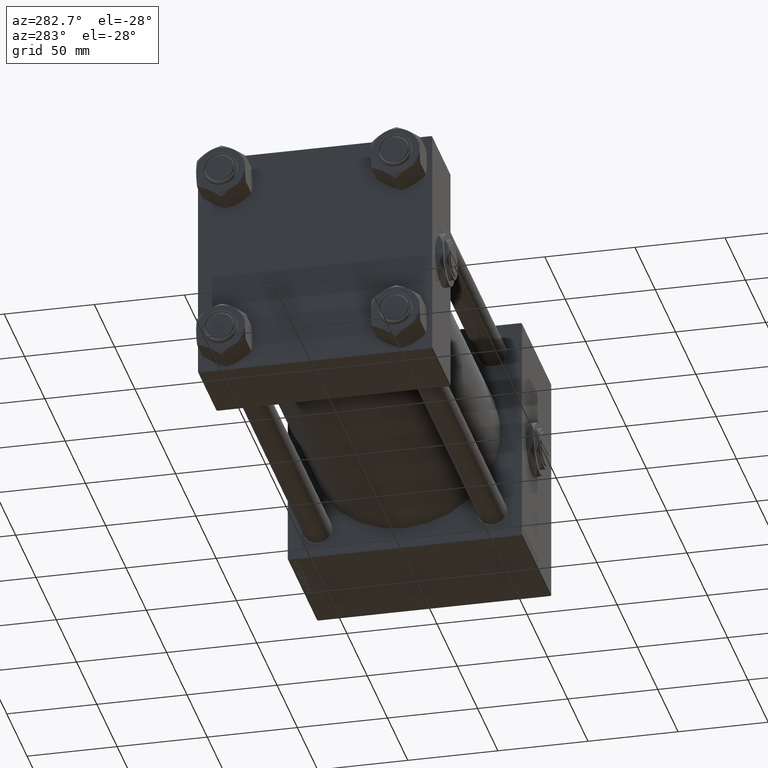
[diagram: clean part render]
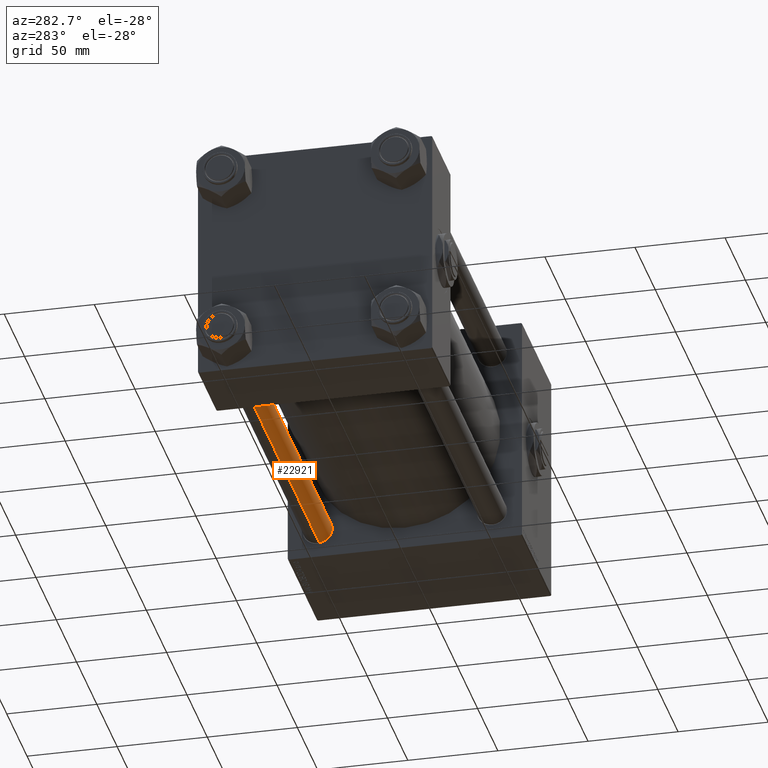
[diagram: same view with one face highlighted and labeled with its STEP entity id]
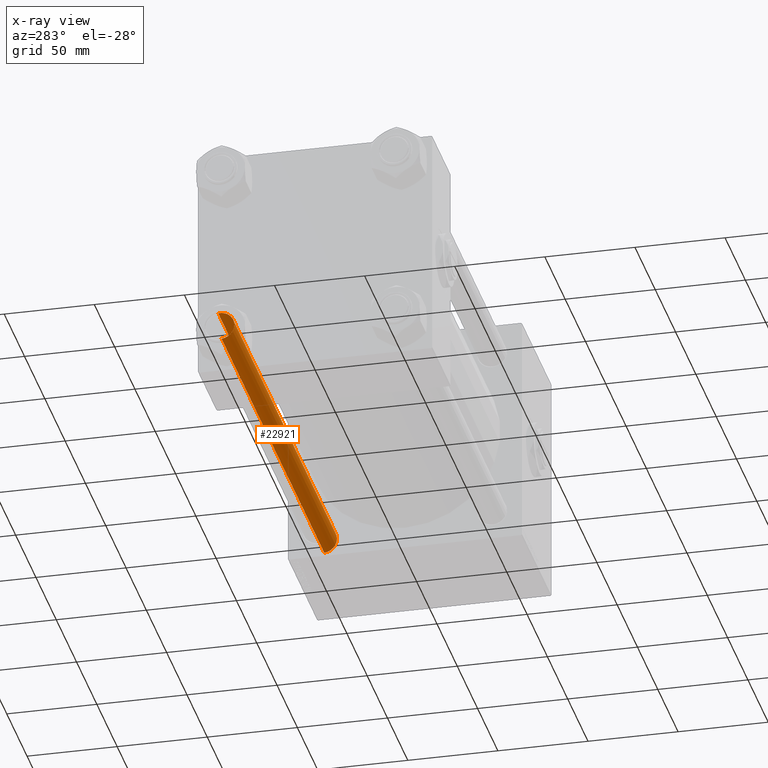
[diagram: x-ray of the same camera — body ghosted, the highlighted face saturated]
A machine part, auxiliary view. The second image highlights one B-rep face of the part: STEP entity #22921.
The next image is the same camera in x-ray: the body ghosted, the highlighted face saturated — about 0% of this face is hidden behind the body in this view.
In plain terms, the highlighted cylindrical surface (edge-blend (fillet) strip) has radius 8 mm, axis along (1, -0, 0).
Its self-contained STEP definition (entity closure, byte-faithful):
#152 = VERTEX_POINT ( 'NONE', #51806 ) ;
#2517 = FACE_OUTER_BOUND ( 'NONE', #32564, .T. ) ;
#3203 = CARTESIAN_POINT ( 'NONE',  ( -8.000000000000000000, 0.000000000000000000, 254.0000000000000000 ) ) ;
#3241 = CARTESIAN_POINT ( 'NONE',  ( 8.000000000000000000, 9.797174393178825657E-16, 0.5000000000000004441 ) ) ;
#6267 = CARTESIAN_POINT ( 'NONE',  ( 0.000000000000000000, 0.000000000000000000, 0.5000000000000004441 ) ) ;
#6692 = LINE ( 'NONE', #3203, #46231 ) ;
#6790 = VERTEX_POINT ( 'NONE', #31770 ) ;
#8187 = VERTEX_POINT ( 'NONE', #43295 ) ;
#12226 = CIRCLE ( 'NONE', #36997, 8.000000000000000000 ) ;
#16304 = AXIS2_PLACEMENT_3D ( 'NONE', #6267, #26338, #47204 ) ;
#16333 = DIRECTION ( 'NONE',  ( 0.000000000000000000, 0.000000000000000000, -1.000000000000000000 ) ) ;
#17928 = EDGE_CURVE ( 'NONE', #8187, #37786, #30770, .T. ) ;
#18580 = DIRECTION ( 'NONE',  ( -0.000000000000000000, -0.000000000000000000, -1.000000000000000000 ) ) ;
#18847 = CYLINDRICAL_SURFACE ( 'NONE', #49686, 8.000000000000000000 ) ;
#19901 = EDGE_CURVE ( 'NONE', #6790, #37786, #32530, .T. ) ;
#21192 = EDGE_CURVE ( 'NONE', #152, #6790, #6692, .T. ) ;
#22921 = ADVANCED_FACE ( 'NONE', ( #2517 ), #18847, .T. ) ;
#23130 = DIRECTION ( 'NONE',  ( -1.000000000000000000, 0.000000000000000000, 0.000000000000000000 ) ) ;
#26338 = DIRECTION ( 'NONE',  ( -0.000000000000000000, -0.000000000000000000, 1.000000000000000000 ) ) ;
#29104 = ORIENTED_EDGE ( 'NONE', *, *, #17928, .F. ) ;
#29628 = ORIENTED_EDGE ( 'NONE', *, *, #19901, .T. ) ;
#29736 = DIRECTION ( 'NONE',  ( -0.000000000000000000, -0.000000000000000000, -1.000000000000000000 ) ) ;
#30770 = LINE ( 'NONE', #50082, #42786 ) ;
#31409 = CARTESIAN_POINT ( 'NONE',  ( 0.000000000000000000, 0.000000000000000000, 254.0000000000000000 ) ) ;
#31592 = ORIENTED_EDGE ( 'NONE', *, *, #21192, .T. ) ;
#31770 = CARTESIAN_POINT ( 'NONE',  ( -8.000000000000000000, 0.000000000000000000, 0.5000000000000004441 ) ) ;
#32530 = CIRCLE ( 'NONE', #16304, 8.000000000000000000 ) ;
#32564 = EDGE_LOOP ( 'NONE', ( #29104, #42977, #31592, #29628 ) ) ;
#32640 = CARTESIAN_POINT ( 'NONE',  ( 0.000000000000000000, 0.000000000000000000, 253.5000000000000568 ) ) ;
#35578 = DIRECTION ( 'NONE',  ( -0.000000000000000000, -0.000000000000000000, -1.000000000000000000 ) ) ;
#36997 = AXIS2_PLACEMENT_3D ( 'NONE', #32640, #16333, #40670 ) ;
#37786 = VERTEX_POINT ( 'NONE', #3241 ) ;
#40670 = DIRECTION ( 'NONE',  ( 1.000000000000000000, 0.000000000000000000, 0.000000000000000000 ) ) ;
#42786 = VECTOR ( 'NONE', #29736, 1000.000000000000000 ) ;
#42977 = ORIENTED_EDGE ( 'NONE', *, *, #48848, .T. ) ;
#43295 = CARTESIAN_POINT ( 'NONE',  ( 8.000000000000000000, 9.797174393178825657E-16, 253.5000000000000568 ) ) ;
#46231 = VECTOR ( 'NONE', #35578, 1000.000000000000000 ) ;
#47204 = DIRECTION ( 'NONE',  ( 1.000000000000000000, 0.000000000000000000, 0.000000000000000000 ) ) ;
#48848 = EDGE_CURVE ( 'NONE', #8187, #152, #12226, .T. ) ;
#49686 = AXIS2_PLACEMENT_3D ( 'NONE', #31409, #18580, #23130 ) ;
#50082 = CARTESIAN_POINT ( 'NONE',  ( 8.000000000000000000, 9.797174393178825657E-16, 254.0000000000000000 ) ) ;
#51806 = CARTESIAN_POINT ( 'NONE',  ( -8.000000000000000000, 0.000000000000000000, 253.5000000000000568 ) ) ;